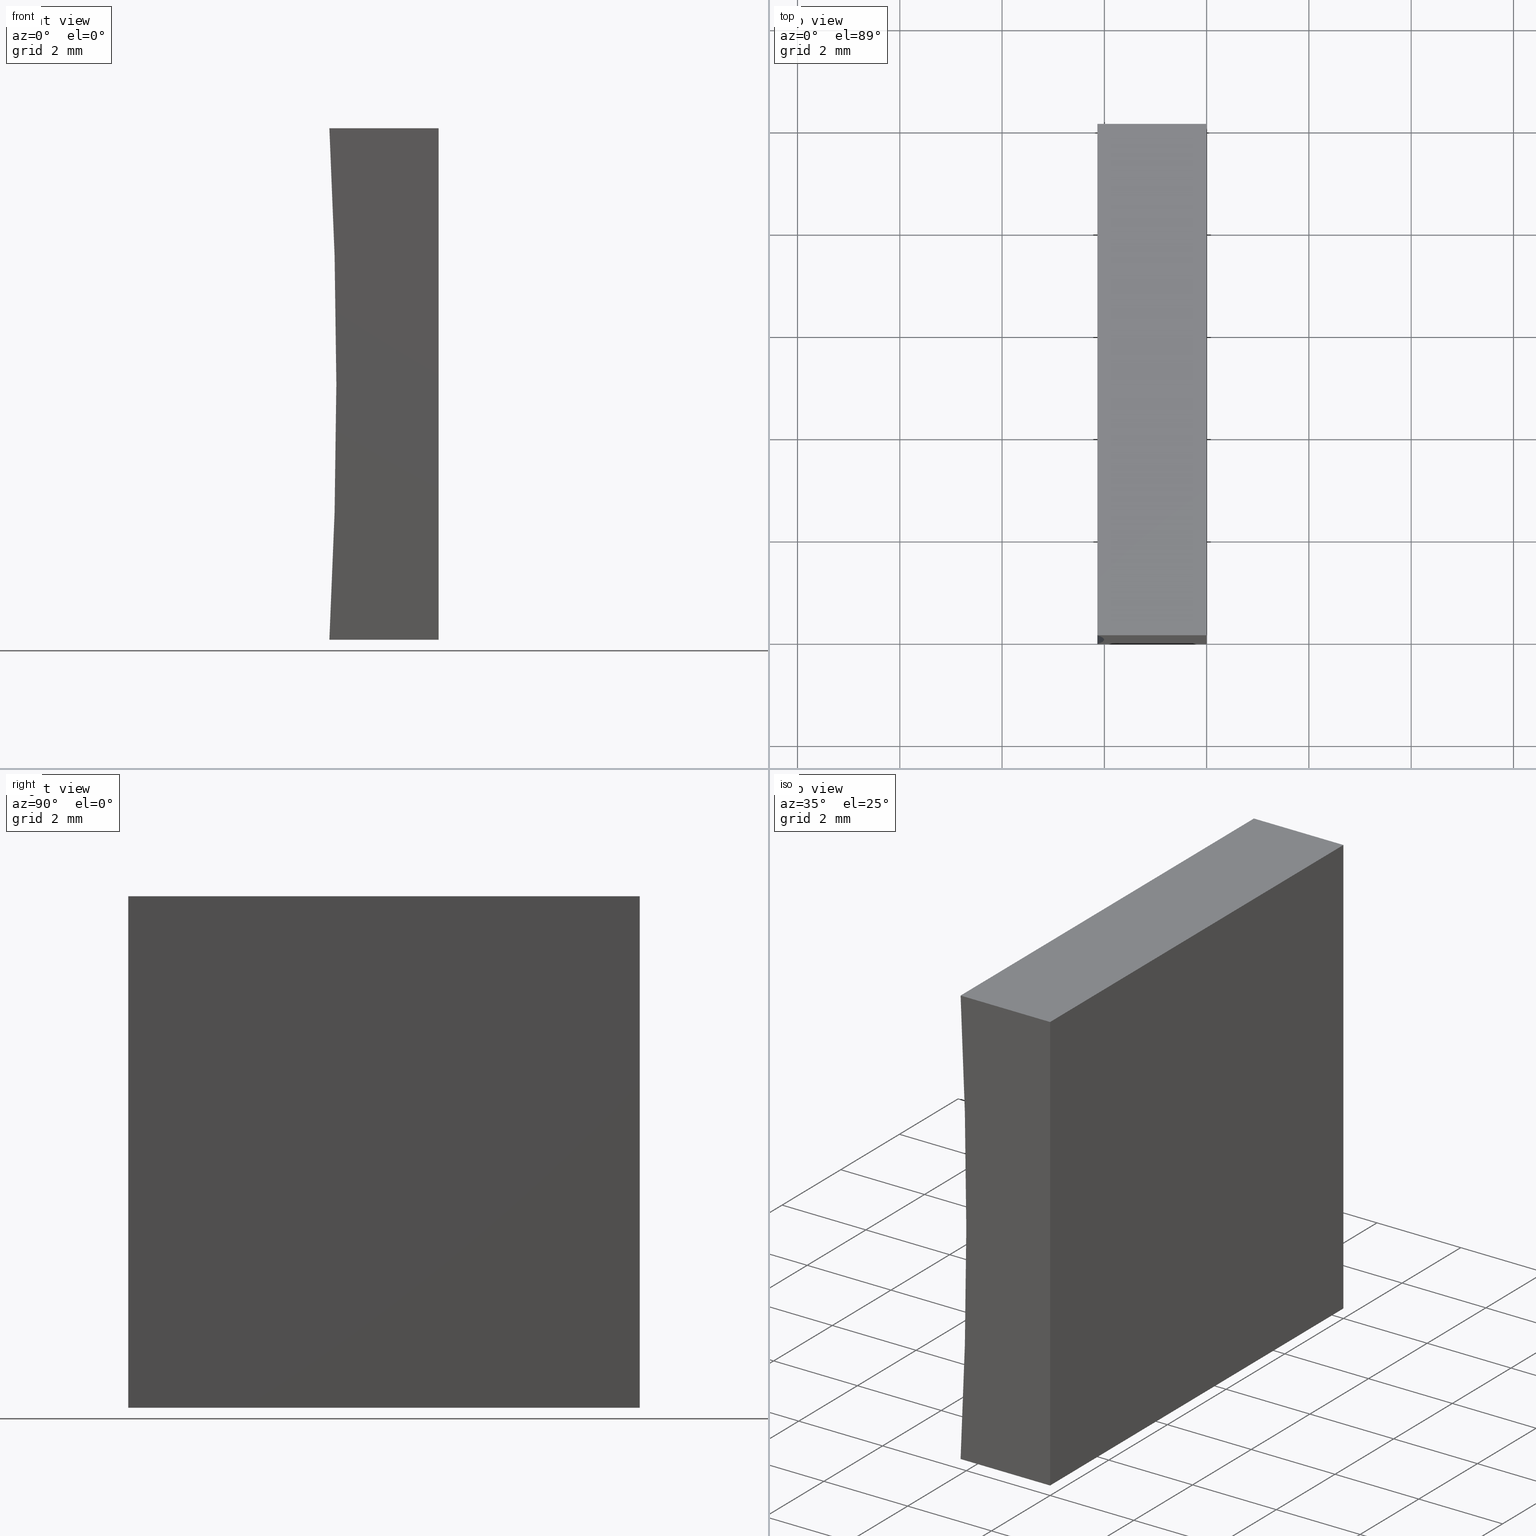
[diagram: canonical four-view strip — front | top / right | iso, engineering-drawing reading convention]
A machine part, canonical four-view strip (front | top / right | iso — engineering-drawing reading convention). The complete STEP part file that produces these views, byte-faithful:
ISO-10303-21;
HEADER;
FILE_DESCRIPTION (( 'STEP AP214' ),
    '1' );
FILE_NAME ('155472.STEP',
    '2019-07-03T06:14:16',
    ( 'user' ),
    ( '΢���й�' ),
    'SwSTEP 2.0',
    'SolidWorks 2016',
    '' );
FILE_SCHEMA (( 'AUTOMOTIVE_DESIGN' ));
ENDSEC;

DATA;
#1 = VECTOR ( 'NONE', #199, 1000.000000000000000 ) ;
#2 = EDGE_CURVE ( 'NONE', #93, #31, #197, .T. ) ;
#3 = VECTOR ( 'NONE', #110, 1000.000000000000000 ) ;
#4 = FILL_AREA_STYLE ('',( #133 ) ) ;
#5 = DIRECTION ( 'NONE',  ( -0.0000000000000000000, -1.000000000000000000, -0.0000000000000000000 ) ) ;
#6 = CARTESIAN_POINT ( 'NONE',  ( 0.0000000000000000000, 10.00000000000000000, 0.0000000000000000000 ) ) ;
#7 = EDGE_LOOP ( 'NONE', ( #178, #182, #83, #142 ) ) ;
#8 = ADVANCED_FACE ( 'NONE', ( #88 ), #54, .F. ) ;
#9 = VECTOR ( 'NONE', #46, 1000.000000000000000 ) ;
#10 = DIRECTION ( 'NONE',  ( -0.0000000000000000000, -1.000000000000000000, -0.0000000000000000000 ) ) ;
#11 = EDGE_LOOP ( 'NONE', ( #20, #53, #102, #25 ) ) ;
#12 = ORIENTED_EDGE ( 'NONE', *, *, #130, .T. ) ;
#13 = VECTOR ( 'NONE', #5, 1000.000000000000000 ) ;
#14 = DIRECTION ( 'NONE',  ( -6.123233995736766000E-017, -0.0000000000000000000, -1.000000000000000000 ) ) ;
#15 = EDGE_CURVE ( 'NONE', #166, #125, #74, .T. ) ;
#16 = ADVANCED_BREP_SHAPE_REPRESENTATION ( '155472', ( #203, #136 ), #190 ) ;
#17 =( NAMED_UNIT ( * ) SI_UNIT ( $, .STERADIAN. ) SOLID_ANGLE_UNIT ( ) );
#18 = EDGE_LOOP ( 'NONE', ( #69, #122, #41, #141 ) ) ;
#19 = CARTESIAN_POINT ( 'NONE',  ( 0.0000000000000000000, 10.00000000000000000, 0.0000000000000000000 ) ) ;
#20 = ORIENTED_EDGE ( 'NONE', *, *, #38, .T. ) ;
#21 =( NAMED_UNIT ( * ) SI_UNIT ( $, .STERADIAN. ) SOLID_ANGLE_UNIT ( ) );
#22 = ORIENTED_EDGE ( 'NONE', *, *, #130, .F. ) ;
#23 = MECHANICAL_DESIGN_GEOMETRIC_PRESENTATION_REPRESENTATION (  '', ( #172 ), #24 ) ;
#24 =( GEOMETRIC_REPRESENTATION_CONTEXT ( 3 ) GLOBAL_UNCERTAINTY_ASSIGNED_CONTEXT ( ( #111 ) ) GLOBAL_UNIT_ASSIGNED_CONTEXT ( ( #165, #94, #21 ) ) REPRESENTATION_CONTEXT ( 'NONE', 'WORKASPACE' ) );
#25 = ORIENTED_EDGE ( 'NONE', *, *, #194, .T. ) ;
#26 = ADVANCED_FACE ( 'NONE', ( #162 ), #103, .F. ) ;
#27 = VECTOR ( 'NONE', #14, 1000.000000000000000 ) ;
#28 = EDGE_LOOP ( 'NONE', ( #157, #134, #22, #163 ) ) ;
#29 = AXIS2_PLACEMENT_3D ( 'NONE', #145, #85, #192 ) ;
#30 = PRODUCT_DEFINITION_SHAPE ( 'NONE', 'NONE',  #87 ) ;
#31 = VERTEX_POINT ( 'NONE', #156 ) ;
#32 = LINE ( 'NONE', #19, #70 ) ;
#33 = EDGE_CURVE ( 'NONE', #52, #114, #202, .T. ) ;
#34 = UNCERTAINTY_MEASURE_WITH_UNIT (LENGTH_MEASURE( 1.000000000000000100E-005 ), #150, 'distance_accuracy_value', 'NONE');
#35 = CARTESIAN_POINT ( 'NONE',  ( 0.0000000000000000000, 0.0000000000000000000, 0.0000000000000000000 ) ) ;
#36 = CYLINDRICAL_SURFACE ( 'NONE', #29, 91.70000000000001700 ) ;
#37 = CARTESIAN_POINT ( 'NONE',  ( 6.123233995736766300E-016, 10.00000000000000000, 10.00000000000000000 ) ) ;
#38 = EDGE_CURVE ( 'NONE', #196, #166, #90, .T. ) ;
#39 = CARTESIAN_POINT ( 'NONE',  ( 6.123233995736766300E-016, 0.0000000000000000000, 10.00000000000000000 ) ) ;
#40 = ORIENTED_EDGE ( 'NONE', *, *, #38, .F. ) ;
#41 = ORIENTED_EDGE ( 'NONE', *, *, #33, .F. ) ;
#42 = FACE_OUTER_BOUND ( 'NONE', #28, .T. ) ;
#43 = CARTESIAN_POINT ( 'NONE',  ( 0.0000000000000000000, 10.00000000000000000, 0.0000000000000000000 ) ) ;
#44 = LINE ( 'NONE', #170, #151 ) ;
#45 = EDGE_CURVE ( 'NONE', #93, #138, #96, .T. ) ;
#46 = DIRECTION ( 'NONE',  ( -6.123233995736766000E-017, -0.0000000000000000000, -1.000000000000000000 ) ) ;
#47 = FILL_AREA_STYLE_COLOUR ( '', #198 ) ;
#48 =( GEOMETRIC_REPRESENTATION_CONTEXT ( 3 ) GLOBAL_UNCERTAINTY_ASSIGNED_CONTEXT ( ( #61 ) ) GLOBAL_UNIT_ASSIGNED_CONTEXT ( ( #115, #164, #49 ) ) REPRESENTATION_CONTEXT ( 'NONE', 'WORKASPACE' ) );
#49 =( NAMED_UNIT ( * ) SI_UNIT ( $, .STERADIAN. ) SOLID_ANGLE_UNIT ( ) );
#50 = CARTESIAN_POINT ( 'NONE',  ( -93.70000000000000300, 0.0000000000000000000, 5.000000000000010700 ) ) ;
#51 = SURFACE_STYLE_USAGE ( .BOTH. , #204 ) ;
#52 = VERTEX_POINT ( 'NONE', #183 ) ;
#53 = ORIENTED_EDGE ( 'NONE', *, *, #124, .F. ) ;
#54 = PLANE ( 'NONE',  #116 ) ;
#55 = EDGE_CURVE ( 'NONE', #138, #52, #131, .T. ) ;
#56 = CARTESIAN_POINT ( 'NONE',  ( 0.0000000000000000000, 10.00000000000000000, 0.0000000000000000000 ) ) ;
#57 = VECTOR ( 'NONE', #58, 1000.000000000000000 ) ;
#58 = DIRECTION ( 'NONE',  ( -0.0000000000000000000, -1.000000000000000000, -0.0000000000000000000 ) ) ;
#59 = DIRECTION ( 'NONE',  ( -0.0000000000000000000, -1.000000000000000000, -0.0000000000000000000 ) ) ;
#60 = APPLICATION_PROTOCOL_DEFINITION ( 'draft international standard', 'automotive_design', 1998, #159 ) ;
#61 = UNCERTAINTY_MEASURE_WITH_UNIT (LENGTH_MEASURE( 1.000000000000000100E-005 ), #115, 'distance_accuracy_value', 'NONE');
#62 = LINE ( 'NONE', #107, #27 ) ;
#63 = DIRECTION ( 'NONE',  ( 0.0000000000000000000, -0.0000000000000000000, 1.000000000000000000 ) ) ;
#64 = DIRECTION ( 'NONE',  ( 0.0000000000000000000, 1.000000000000000000, 0.0000000000000000000 ) ) ;
#65 = SURFACE_STYLE_USAGE ( .BOTH. , #177 ) ;
#66 = DIRECTION ( 'NONE',  ( 0.0000000000000000000, 0.0000000000000000000, 1.000000000000000000 ) ) ;
#67 = FILL_AREA_STYLE ('',( #47 ) ) ;
#68 = LINE ( 'NONE', #129, #13 ) ;
#69 = ORIENTED_EDGE ( 'NONE', *, *, #15, .T. ) ;
#70 = VECTOR ( 'NONE', #86, 1000.000000000000000 ) ;
#71 = ADVANCED_FACE ( 'NONE', ( #167 ), #117, .F. ) ;
#72 = DIRECTION ( 'NONE',  ( 8.119784972569434800E-016, 0.0000000000000000000, -1.000000000000000000 ) ) ;
#73 = PRESENTATION_STYLE_ASSIGNMENT (( #65 ) ) ;
#74 = CIRCLE ( 'NONE', #97, 91.70000000000001700 ) ;
#75 = CARTESIAN_POINT ( 'NONE',  ( 6.123233995736766300E-016, 10.00000000000000000, 10.00000000000000000 ) ) ;
#76 = ORIENTED_EDGE ( 'NONE', *, *, #33, .T. ) ;
#77 = EDGE_CURVE ( 'NONE', #114, #125, #68, .T. ) ;
#78 = SURFACE_STYLE_FILL_AREA ( #67 ) ;
#79 = CARTESIAN_POINT ( 'NONE',  ( -2.136415535432422800, 10.00000000000000000, 9.999999999999998200 ) ) ;
#80 = PRESENTATION_LAYER_ASSIGNMENT (  '', '', ( #172 ) ) ;
#81 = CARTESIAN_POINT ( 'NONE',  ( 0.0000000000000000000, 0.0000000000000000000, 0.0000000000000000000 ) ) ;
#82 = ORIENTED_EDGE ( 'NONE', *, *, #155, .F. ) ;
#83 = ORIENTED_EDGE ( 'NONE', *, *, #45, .F. ) ;
#84 = APPLICATION_CONTEXT ( 'automotive_design' ) ;
#85 = DIRECTION ( 'NONE',  ( -0.0000000000000000000, -1.000000000000000000, -0.0000000000000000000 ) ) ;
#86 = DIRECTION ( 'NONE',  ( -0.0000000000000000000, -1.000000000000000000, -0.0000000000000000000 ) ) ;
#87 = PRODUCT_DEFINITION ( 'δ֪', '', #112, #149 ) ;
#88 = FACE_OUTER_BOUND ( 'NONE', #106, .T. ) ;
#89 = DIRECTION ( 'NONE',  ( 6.123233995736766000E-017, 0.0000000000000000000, 1.000000000000000000 ) ) ;
#90 = LINE ( 'NONE', #158, #3 ) ;
#91 = MECHANICAL_DESIGN_GEOMETRIC_PRESENTATION_REPRESENTATION (  '', ( #153 ), #48 ) ;
#92 = ADVANCED_FACE ( 'NONE', ( #187 ), #175, .T. ) ;
#93 = VERTEX_POINT ( 'NONE', #128 ) ;
#94 =( NAMED_UNIT ( * ) PLANE_ANGLE_UNIT ( ) SI_UNIT ( $, .RADIAN. ) );
#95 = DIRECTION ( 'NONE',  ( 0.0000000000000000000, -0.0000000000000000000, 1.000000000000000000 ) ) ;
#96 = LINE ( 'NONE', #161, #9 ) ;
#97 = AXIS2_PLACEMENT_3D ( 'NONE', #50, #10, #66 ) ;
#98 = DIRECTION ( 'NONE',  ( 8.119784972569431900E-016, -0.0000000000000000000, 1.000000000000000000 ) ) ;
#99 = DIRECTION ( 'NONE',  ( 1.000000000000000000, 0.0000000000000000000, 0.0000000000000000000 ) ) ;
#100 = CARTESIAN_POINT ( 'NONE',  ( -93.70000000000000300, 10.00000000000000000, 5.000000000000010700 ) ) ;
#101 = APPLICATION_PROTOCOL_DEFINITION ( 'draft international standard', 'automotive_design', 1998, #84 ) ;
#102 = ORIENTED_EDGE ( 'NONE', *, *, #55, .F. ) ;
#103 = PLANE ( 'NONE',  #140 ) ;
#104 = PRESENTATION_LAYER_ASSIGNMENT (  '', '', ( #153 ) ) ;
#105 = ORIENTED_EDGE ( 'NONE', *, *, #45, .T. ) ;
#106 = EDGE_LOOP ( 'NONE', ( #40, #82, #188, #144 ) ) ;
#107 = CARTESIAN_POINT ( 'NONE',  ( 0.0000000000000000000, 0.0000000000000000000, 0.0000000000000000000 ) ) ;
#108 = LINE ( 'NONE', #75, #154 ) ;
#109 = DIRECTION ( 'NONE',  ( 1.000000000000000000, 0.0000000000000000000, -8.119784972569431900E-016 ) ) ;
#110 = DIRECTION ( 'NONE',  ( -1.000000000000000000, 0.0000000000000000000, 8.119784972569430900E-016 ) ) ;
#111 = UNCERTAINTY_MEASURE_WITH_UNIT (LENGTH_MEASURE( 1.000000000000000100E-005 ), #165, 'distance_accuracy_value', 'NONE');
#112 = PRODUCT_DEFINITION_FORMATION_WITH_SPECIFIED_SOURCE ( '�κ�', '', #132, .NOT_KNOWN. ) ;
#113 = VECTOR ( 'NONE', #119, 1000.000000000000000 ) ;
#114 = VERTEX_POINT ( 'NONE', #79 ) ;
#115 =( LENGTH_UNIT ( ) NAMED_UNIT ( * ) SI_UNIT ( .MILLI., .METRE. ) );
#116 = AXIS2_PLACEMENT_3D ( 'NONE', #184, #195, #95 ) ;
#117 = PLANE ( 'NONE',  #201 ) ;
#118 = LINE ( 'NONE', #39, #113 ) ;
#119 = DIRECTION ( 'NONE',  ( 1.000000000000000000, -0.0000000000000000000, 8.119784972569433800E-016 ) ) ;
#120 = PRODUCT_CONTEXT ( 'NONE', #84, 'mechanical' ) ;
#121 = SURFACE_STYLE_FILL_AREA ( #4 ) ;
#122 = ORIENTED_EDGE ( 'NONE', *, *, #77, .F. ) ;
#123 = AXIS2_PLACEMENT_3D ( 'NONE', #37, #72, #127 ) ;
#124 = EDGE_CURVE ( 'NONE', #52, #166, #44, .T. ) ;
#125 = VERTEX_POINT ( 'NONE', #174 ) ;
#126 = PRESENTATION_STYLE_ASSIGNMENT (( #51 ) ) ;
#127 = DIRECTION ( 'NONE',  ( -1.000000000000000000, 0.0000000000000000000, -8.119784972569434800E-016 ) ) ;
#128 = CARTESIAN_POINT ( 'NONE',  ( 6.123233995736766300E-016, 10.00000000000000000, 10.00000000000000000 ) ) ;
#129 = CARTESIAN_POINT ( 'NONE',  ( -2.136415535432422800, 10.00000000000000000, 9.999999999999998200 ) ) ;
#130 = EDGE_CURVE ( 'NONE', #114, #93, #108, .T. ) ;
#131 = LINE ( 'NONE', #56, #1 ) ;
#132 = PRODUCT ( '155472', '155472', '', ( #120 ) ) ;
#133 = FILL_AREA_STYLE_COLOUR ( '', #160 ) ;
#134 = ORIENTED_EDGE ( 'NONE', *, *, #2, .F. ) ;
#135 = AXIS2_PLACEMENT_3D ( 'NONE', #100, #64, #63 ) ;
#136 = AXIS2_PLACEMENT_3D ( 'NONE', #35, #148, #99 ) ;
#137 = PLANE ( 'NONE',  #123 ) ;
#138 = VERTEX_POINT ( 'NONE', #43 ) ;
#139 =( NAMED_UNIT ( * ) PLANE_ANGLE_UNIT ( ) SI_UNIT ( $, .RADIAN. ) );
#140 = AXIS2_PLACEMENT_3D ( 'NONE', #6, #180, #89 ) ;
#141 = ORIENTED_EDGE ( 'NONE', *, *, #124, .T. ) ;
#142 = ORIENTED_EDGE ( 'NONE', *, *, #2, .T. ) ;
#143 = CARTESIAN_POINT ( 'NONE',  ( -93.70000000000000300, 10.00000000000000000, 5.000000000000010700 ) ) ;
#144 = ORIENTED_EDGE ( 'NONE', *, *, #15, .F. ) ;
#145 = CARTESIAN_POINT ( 'NONE',  ( -93.70000000000000300, 10.00000000000000000, 5.000000000000010700 ) ) ;
#146 = CARTESIAN_POINT ( 'NONE',  ( -2.136415535432423200, 0.0000000000000000000, -7.806255641895631900E-015 ) ) ;
#147 = EDGE_LOOP ( 'NONE', ( #179, #76, #12, #105 ) ) ;
#148 = DIRECTION ( 'NONE',  ( 0.0000000000000000000, 0.0000000000000000000, 1.000000000000000000 ) ) ;
#149 = PRODUCT_DEFINITION_CONTEXT ( 'detailed design', #159, 'design' ) ;
#150 =( LENGTH_UNIT ( ) NAMED_UNIT ( * ) SI_UNIT ( .MILLI., .METRE. ) );
#151 = VECTOR ( 'NONE', #169, 1000.000000000000000 ) ;
#152 = PRODUCT_RELATED_PRODUCT_CATEGORY ( 'part', '', ( #132 ) ) ;
#153 = STYLED_ITEM ( 'NONE', ( #73 ), #16 ) ;
#154 = VECTOR ( 'NONE', #185, 1000.000000000000000 ) ;
#155 = EDGE_CURVE ( 'NONE', #31, #196, #62, .T. ) ;
#156 = CARTESIAN_POINT ( 'NONE',  ( 6.123233995736766300E-016, 0.0000000000000000000, 10.00000000000000000 ) ) ;
#157 = ORIENTED_EDGE ( 'NONE', *, *, #189, .T. ) ;
#158 = CARTESIAN_POINT ( 'NONE',  ( 0.0000000000000000000, 0.0000000000000000000, 0.0000000000000000000 ) ) ;
#159 = APPLICATION_CONTEXT ( 'automotive_design' ) ;
#160 = COLOUR_RGB ( '',1.000000000000000000, 1.000000000000000000, 1.000000000000000000 ) ;
#161 = CARTESIAN_POINT ( 'NONE',  ( 0.0000000000000000000, 10.00000000000000000, 0.0000000000000000000 ) ) ;
#162 = FACE_OUTER_BOUND ( 'NONE', #7, .T. ) ;
#163 = ORIENTED_EDGE ( 'NONE', *, *, #77, .T. ) ;
#164 =( NAMED_UNIT ( * ) PLANE_ANGLE_UNIT ( ) SI_UNIT ( $, .RADIAN. ) );
#165 =( LENGTH_UNIT ( ) NAMED_UNIT ( * ) SI_UNIT ( .MILLI., .METRE. ) );
#166 = VERTEX_POINT ( 'NONE', #146 ) ;
#167 = FACE_OUTER_BOUND ( 'NONE', #11, .T. ) ;
#168 = CARTESIAN_POINT ( 'NONE',  ( 0.0000000000000000000, 10.00000000000000000, 0.0000000000000000000 ) ) ;
#169 = DIRECTION ( 'NONE',  ( -0.0000000000000000000, -1.000000000000000000, -0.0000000000000000000 ) ) ;
#170 = CARTESIAN_POINT ( 'NONE',  ( -2.136415535432423200, 10.00000000000000000, -7.806255641895631900E-015 ) ) ;
#171 = AXIS2_PLACEMENT_3D ( 'NONE', #143, #59, #186 ) ;
#172 = STYLED_ITEM ( 'NONE', ( #126 ), #203 ) ;
#173 = SHAPE_DEFINITION_REPRESENTATION ( #30, #16 ) ;
#174 = CARTESIAN_POINT ( 'NONE',  ( -2.136415535432422800, 0.0000000000000000000, 9.999999999999998200 ) ) ;
#175 = PLANE ( 'NONE',  #135 ) ;
#176 = CARTESIAN_POINT ( 'NONE',  ( 6.123233995736766300E-016, 10.00000000000000000, 10.00000000000000000 ) ) ;
#177 = SURFACE_SIDE_STYLE ('',( #121 ) ) ;
#178 = ORIENTED_EDGE ( 'NONE', *, *, #155, .T. ) ;
#179 = ORIENTED_EDGE ( 'NONE', *, *, #55, .T. ) ;
#180 = DIRECTION ( 'NONE',  ( -1.000000000000000000, 0.0000000000000000000, 6.123233995736766000E-017 ) ) ;
#181 = ADVANCED_FACE ( 'NONE', ( #42 ), #137, .F. ) ;
#182 = ORIENTED_EDGE ( 'NONE', *, *, #194, .F. ) ;
#183 = CARTESIAN_POINT ( 'NONE',  ( -2.136415535432423200, 10.00000000000000000, -7.806255641895631900E-015 ) ) ;
#184 = CARTESIAN_POINT ( 'NONE',  ( -93.70000000000000300, 0.0000000000000000000, 5.000000000000010700 ) ) ;
#185 = DIRECTION ( 'NONE',  ( 1.000000000000000000, -0.0000000000000000000, 8.119784972569433800E-016 ) ) ;
#186 = DIRECTION ( 'NONE',  ( 0.0000000000000000000, 0.0000000000000000000, 1.000000000000000000 ) ) ;
#187 = FACE_OUTER_BOUND ( 'NONE', #147, .T. ) ;
#188 = ORIENTED_EDGE ( 'NONE', *, *, #189, .F. ) ;
#189 = EDGE_CURVE ( 'NONE', #125, #31, #118, .T. ) ;
#190 =( GEOMETRIC_REPRESENTATION_CONTEXT ( 3 ) GLOBAL_UNCERTAINTY_ASSIGNED_CONTEXT ( ( #34 ) ) GLOBAL_UNIT_ASSIGNED_CONTEXT ( ( #150, #139, #17 ) ) REPRESENTATION_CONTEXT ( 'NONE', 'WORKASPACE' ) );
#191 = FACE_OUTER_BOUND ( 'NONE', #18, .T. ) ;
#192 = DIRECTION ( 'NONE',  ( 0.0000000000000000000, 0.0000000000000000000, -1.000000000000000000 ) ) ;
#193 = CLOSED_SHELL ( 'NONE', ( #71, #200, #181, #26, #92, #8 ) ) ;
#194 = EDGE_CURVE ( 'NONE', #138, #196, #32, .T. ) ;
#195 = DIRECTION ( 'NONE',  ( 0.0000000000000000000, 1.000000000000000000, 0.0000000000000000000 ) ) ;
#196 = VERTEX_POINT ( 'NONE', #81 ) ;
#197 = LINE ( 'NONE', #176, #57 ) ;
#198 = COLOUR_RGB ( '',1.000000000000000000, 1.000000000000000000, 1.000000000000000000 ) ;
#199 = DIRECTION ( 'NONE',  ( -1.000000000000000000, 0.0000000000000000000, 8.119784972569430900E-016 ) ) ;
#200 = ADVANCED_FACE ( 'NONE', ( #191 ), #36, .F. ) ;
#201 = AXIS2_PLACEMENT_3D ( 'NONE', #168, #98, #109 ) ;
#202 = CIRCLE ( 'NONE', #171, 91.70000000000001700 ) ;
#203 = MANIFOLD_SOLID_BREP ( '͹̨-����1', #193 ) ;
#204 = SURFACE_SIDE_STYLE ('',( #78 ) ) ;
ENDSEC;
END-ISO-10303-21;
